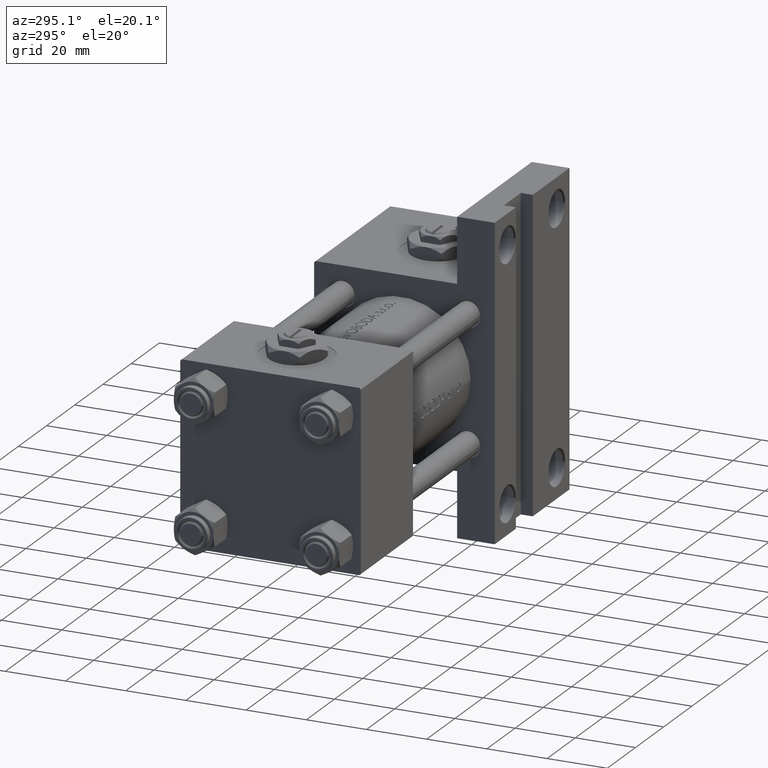
[diagram: clean part render]
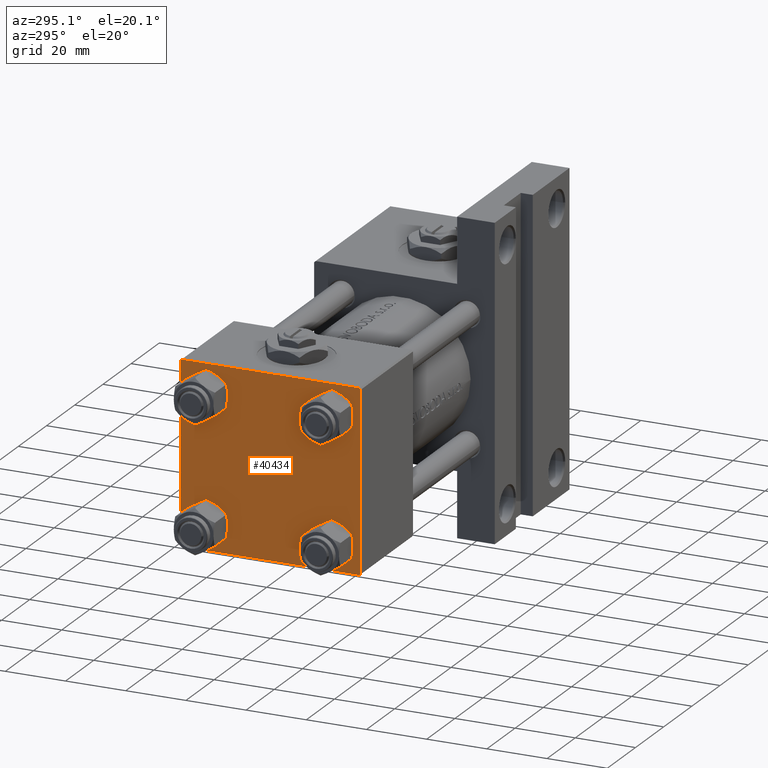
[diagram: same view with one face highlighted and labeled with its STEP entity id]
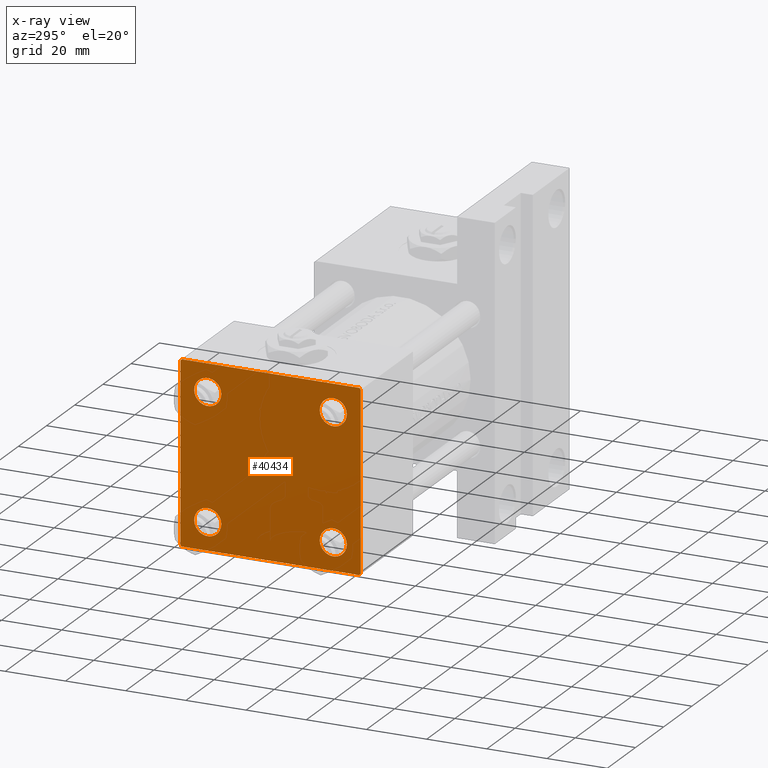
[diagram: x-ray of the same camera — body ghosted, the highlighted face saturated]
A machine part, auxiliary view. The second image highlights one B-rep face of the part: STEP entity #40434.
The next image is the same camera in x-ray: the body ghosted, the highlighted face saturated — about 0% of this face is hidden behind the body in this view.
In plain terms, the highlighted planar face has unit normal (-1, 0, -0).
Its self-contained STEP definition (entity closure, byte-faithful):
#388 = VECTOR ( 'NONE', #12780, 1000.000000000000114 ) ;
#1326 = AXIS2_PLACEMENT_3D ( 'NONE', #24713, #28306, #12406 ) ;
#1774 = VECTOR ( 'NONE', #25454, 1000.000000000000000 ) ;
#1947 = DIRECTION ( 'NONE',  ( 1.000000000000000000, -0.000000000000000000, 0.000000000000000000 ) ) ;
#2334 = CARTESIAN_POINT ( 'NONE',  ( 0.000000000000000000, -30.00000000000000000, 29.49999999999999289 ) ) ;
#2490 = CARTESIAN_POINT ( 'NONE',  ( 0.000000000000000000, 20.84999999999999787, 25.35000000000001918 ) ) ;
#2614 = CARTESIAN_POINT ( 'NONE',  ( 0.000000000000000000, -29.75000000000001066, -29.75000000000001066 ) ) ;
#2667 = DIRECTION ( 'NONE',  ( 0.000000000000000000, 0.7071067811865474617, -0.7071067811865474617 ) ) ;
#3121 = CIRCLE ( 'NONE', #23604, 4.500000000000017764 ) ;
#3199 = CARTESIAN_POINT ( 'NONE',  ( 0.000000000000000000, -20.84999999999999076, 25.35000000000002274 ) ) ;
#3636 = VERTEX_POINT ( 'NONE', #4293 ) ;
#3874 = LINE ( 'NONE', #39539, #44424 ) ;
#4080 = CARTESIAN_POINT ( 'NONE',  ( 0.000000000000000000, 20.84999999999999787, -16.34999999999998366 ) ) ;
#4293 = CARTESIAN_POINT ( 'NONE',  ( 0.000000000000000000, 29.99999999999999289, 29.50000000000000000 ) ) ;
#4360 = DIRECTION ( 'NONE',  ( 1.000000000000000000, -0.000000000000000000, 0.000000000000000000 ) ) ;
#6085 = CARTESIAN_POINT ( 'NONE',  ( -0.000000000000000000, -29.74999999999999645, 29.74999999999999645 ) ) ;
#6512 = CIRCLE ( 'NONE', #27014, 4.500000000000017764 ) ;
#6570 = AXIS2_PLACEMENT_3D ( 'NONE', #10062, #14684, #14421 ) ;
#6605 = EDGE_LOOP ( 'NONE', ( #37206, #48639 ) ) ;
#6648 = CARTESIAN_POINT ( 'NONE',  ( 0.000000000000000000, 20.84999999999999787, -25.35000000000001918 ) ) ;
#6772 = CARTESIAN_POINT ( 'NONE',  ( 0.000000000000000000, 29.74999999999999645, 29.74999999999999645 ) ) ;
#6937 = DIRECTION ( 'NONE',  ( 0.000000000000000000, 0.000000000000000000, 1.000000000000000000 ) ) ;
#7166 = CIRCLE ( 'NONE', #24393, 4.500000000000017764 ) ;
#8001 = LINE ( 'NONE', #15471, #11568 ) ;
#8250 = DIRECTION ( 'NONE',  ( 0.000000000000000000, 0.000000000000000000, -1.000000000000000000 ) ) ;
#8704 = VERTEX_POINT ( 'NONE', #27191 ) ;
#8965 = ORIENTED_EDGE ( 'NONE', *, *, #18582, .T. ) ;
#9081 = VERTEX_POINT ( 'NONE', #39620 ) ;
#9408 = DIRECTION ( 'NONE',  ( 1.000000000000000000, -0.000000000000000000, 0.000000000000000000 ) ) ;
#9994 = ORIENTED_EDGE ( 'NONE', *, *, #48545, .F. ) ;
#10062 = CARTESIAN_POINT ( 'NONE',  ( 0.000000000000000000, 20.84999999999999787, 20.85000000000000142 ) ) ;
#10151 = CARTESIAN_POINT ( 'NONE',  ( 0.000000000000000000, -20.84999999999999076, 20.85000000000000497 ) ) ;
#10364 = LINE ( 'NONE', #6772, #28262 ) ;
#11568 = VECTOR ( 'NONE', #8250, 1000.000000000000000 ) ;
#11717 = AXIS2_PLACEMENT_3D ( 'NONE', #36157, #4360, #43621 ) ;
#11765 = ORIENTED_EDGE ( 'NONE', *, *, #30419, .T. ) ;
#12125 = VERTEX_POINT ( 'NONE', #31732 ) ;
#12406 = DIRECTION ( 'NONE',  ( 0.000000000000000000, 0.000000000000000000, 1.000000000000000000 ) ) ;
#12533 = ORIENTED_EDGE ( 'NONE', *, *, #32873, .T. ) ;
#12705 = VERTEX_POINT ( 'NONE', #4080 ) ;
#12720 = DIRECTION ( 'NONE',  ( 0.000000000000000000, -1.000000000000000000, -1.156482317317871725E-16 ) ) ;
#12780 = DIRECTION ( 'NONE',  ( -0.000000000000000000, 0.7071067811865474617, 0.7071067811865474617 ) ) ;
#12813 = CARTESIAN_POINT ( 'NONE',  ( 0.000000000000000000, -20.84999999999999076, -16.34999999999998721 ) ) ;
#13267 = DIRECTION ( 'NONE',  ( 0.000000000000000000, 0.000000000000000000, 1.000000000000000000 ) ) ;
#13304 = ORIENTED_EDGE ( 'NONE', *, *, #32420, .T. ) ;
#13366 = EDGE_CURVE ( 'NONE', #26057, #46371, #28707, .T. ) ;
#13555 = CIRCLE ( 'NONE', #48796, 4.500000000000017764 ) ;
#13836 = VERTEX_POINT ( 'NONE', #21445 ) ;
#14421 = DIRECTION ( 'NONE',  ( 0.000000000000000000, 0.000000000000000000, 1.000000000000000000 ) ) ;
#14684 = DIRECTION ( 'NONE',  ( 1.000000000000000000, -0.000000000000000000, 0.000000000000000000 ) ) ;
#15253 = CARTESIAN_POINT ( 'NONE',  ( 0.000000000000000000, 29.99999999999999289, -29.50000000000000000 ) ) ;
#15471 = CARTESIAN_POINT ( 'NONE',  ( 0.000000000000000000, -30.00000000000000000, 29.99999999999999289 ) ) ;
#15952 = VERTEX_POINT ( 'NONE', #24389 ) ;
#16592 = FACE_BOUND ( 'NONE', #32329, .T. ) ;
#16730 = CARTESIAN_POINT ( 'NONE',  ( 0.000000000000000000, 29.99999999999999289, 30.00000000000000000 ) ) ;
#18413 = EDGE_CURVE ( 'NONE', #41087, #44306, #7166, .T. ) ;
#18582 = EDGE_CURVE ( 'NONE', #26684, #9081, #41592, .T. ) ;
#19627 = VECTOR ( 'NONE', #38282, 1000.000000000000114 ) ;
#20672 = CARTESIAN_POINT ( 'NONE',  ( 0.000000000000000000, 20.84999999999999787, 16.34999999999998366 ) ) ;
#21445 = CARTESIAN_POINT ( 'NONE',  ( 0.000000000000000000, 29.49999999999999289, 30.00000000000000000 ) ) ;
#21875 = EDGE_CURVE ( 'NONE', #3636, #23247, #43448, .T. ) ;
#23247 = VERTEX_POINT ( 'NONE', #15253 ) ;
#23555 = DIRECTION ( 'NONE',  ( 0.000000000000000000, 0.000000000000000000, 1.000000000000000000 ) ) ;
#23590 = LINE ( 'NONE', #2614, #19627 ) ;
#23598 = CARTESIAN_POINT ( 'NONE',  ( 0.000000000000000000, -20.84999999999999076, -20.85000000000000497 ) ) ;
#23604 = AXIS2_PLACEMENT_3D ( 'NONE', #26447, #42094, #6937 ) ;
#24040 = FACE_BOUND ( 'NONE', #6605, .T. ) ;
#24111 = DIRECTION ( 'NONE',  ( 0.000000000000000000, 0.000000000000000000, 1.000000000000000000 ) ) ;
#24282 = FACE_BOUND ( 'NONE', #25441, .T. ) ;
#24389 = CARTESIAN_POINT ( 'NONE',  ( 0.000000000000000000, -29.49999999999998579, 29.99999999999999289 ) ) ;
#24393 = AXIS2_PLACEMENT_3D ( 'NONE', #48413, #9408, #13267 ) ;
#24713 = CARTESIAN_POINT ( 'NONE',  ( 0.000000000000000000, -20.84999999999999076, 20.85000000000000497 ) ) ;
#25441 = EDGE_LOOP ( 'NONE', ( #8965, #26062 ) ) ;
#25450 = ORIENTED_EDGE ( 'NONE', *, *, #47463, .T. ) ;
#25454 = DIRECTION ( 'NONE',  ( 0.000000000000000000, 0.000000000000000000, -1.000000000000000000 ) ) ;
#25809 = DIRECTION ( 'NONE',  ( 0.000000000000000000, 0.000000000000000000, 1.000000000000000000 ) ) ;
#26057 = VERTEX_POINT ( 'NONE', #20672 ) ;
#26062 = ORIENTED_EDGE ( 'NONE', *, *, #36130, .T. ) ;
#26224 = EDGE_CURVE ( 'NONE', #23247, #35821, #3874, .T. ) ;
#26272 = CARTESIAN_POINT ( 'NONE',  ( 0.000000000000000000, 29.49999999999997868, -30.00000000000000000 ) ) ;
#26447 = CARTESIAN_POINT ( 'NONE',  ( 0.000000000000000000, 20.84999999999999787, -20.85000000000000142 ) ) ;
#26575 = EDGE_LOOP ( 'NONE', ( #33960, #44058, #11765, #39147, #9994, #12533, #46667, #13304 ) ) ;
#26684 = VERTEX_POINT ( 'NONE', #3199 ) ;
#27014 = AXIS2_PLACEMENT_3D ( 'NONE', #23598, #47207, #24111 ) ;
#27191 = CARTESIAN_POINT ( 'NONE',  ( 0.000000000000000000, -30.00000000000000000, -29.50000000000001776 ) ) ;
#28108 = ORIENTED_EDGE ( 'NONE', *, *, #38455, .T. ) ;
#28222 = EDGE_CURVE ( 'NONE', #46371, #26057, #45290, .T. ) ;
#28262 = VECTOR ( 'NONE', #2667, 1000.000000000000114 ) ;
#28306 = DIRECTION ( 'NONE',  ( 1.000000000000000000, -0.000000000000000000, 0.000000000000000000 ) ) ;
#28707 = CIRCLE ( 'NONE', #6570, 4.500000000000017764 ) ;
#29455 = VECTOR ( 'NONE', #32363, 1000.000000000000000 ) ;
#29963 = CIRCLE ( 'NONE', #1326, 4.500000000000017764 ) ;
#30138 = AXIS2_PLACEMENT_3D ( 'NONE', #10151, #1947, #25809 ) ;
#30419 = EDGE_CURVE ( 'NONE', #35821, #12125, #43782, .T. ) ;
#31239 = DIRECTION ( 'NONE',  ( -0.000000000000000000, 0.000000000000000000, 1.000000000000000000 ) ) ;
#31349 = DIRECTION ( 'NONE',  ( -0.000000000000000000, -0.7071067811865574537, -0.7071067811865376918 ) ) ;
#31732 = CARTESIAN_POINT ( 'NONE',  ( 0.000000000000000000, -29.50000000000000000, -30.00000000000000711 ) ) ;
#32329 = EDGE_LOOP ( 'NONE', ( #25450, #44152 ) ) ;
#32363 = DIRECTION ( 'NONE',  ( 0.000000000000000000, -1.000000000000000000, -1.156482317317871725E-16 ) ) ;
#32420 = EDGE_CURVE ( 'NONE', #13836, #3636, #10364, .T. ) ;
#32553 = ORIENTED_EDGE ( 'NONE', *, *, #44081, .T. ) ;
#32873 = EDGE_CURVE ( 'NONE', #35256, #15952, #41235, .T. ) ;
#33919 = CARTESIAN_POINT ( 'NONE',  ( 0.000000000000000000, -20.84999999999999076, -25.35000000000002274 ) ) ;
#33960 = ORIENTED_EDGE ( 'NONE', *, *, #21875, .T. ) ;
#35256 = VERTEX_POINT ( 'NONE', #2334 ) ;
#35751 = CARTESIAN_POINT ( 'NONE',  ( 0.000000000000000000, 29.99999999999999289, 30.00000000000000000 ) ) ;
#35821 = VERTEX_POINT ( 'NONE', #26272 ) ;
#36130 = EDGE_CURVE ( 'NONE', #9081, #26684, #29963, .T. ) ;
#36157 = CARTESIAN_POINT ( 'NONE',  ( 0.000000000000000000, 20.84999999999999787, 20.85000000000000142 ) ) ;
#36218 = LINE ( 'NONE', #16730, #29455 ) ;
#37206 = ORIENTED_EDGE ( 'NONE', *, *, #28222, .T. ) ;
#38282 = DIRECTION ( 'NONE',  ( 0.000000000000000000, -0.7071067811865474617, 0.7071067811865474617 ) ) ;
#38455 = EDGE_CURVE ( 'NONE', #42735, #12705, #13555, .T. ) ;
#38695 = DIRECTION ( 'NONE',  ( 1.000000000000000000, -0.000000000000000000, 0.000000000000000000 ) ) ;
#39147 = ORIENTED_EDGE ( 'NONE', *, *, #46217, .T. ) ;
#39429 = FACE_BOUND ( 'NONE', #44363, .T. ) ;
#39539 = CARTESIAN_POINT ( 'NONE',  ( 0.000000000000000000, 29.74999999999957723, -29.75000000000040501 ) ) ;
#39620 = CARTESIAN_POINT ( 'NONE',  ( 0.000000000000000000, -20.84999999999999076, 16.34999999999998721 ) ) ;
#40434 = ADVANCED_FACE ( 'NONE', ( #24282, #16592, #39429, #24040, #43786 ), #42781, .T. ) ;
#41087 = VERTEX_POINT ( 'NONE', #33919 ) ;
#41235 = LINE ( 'NONE', #6085, #388 ) ;
#41592 = CIRCLE ( 'NONE', #30138, 4.500000000000017764 ) ;
#42094 = DIRECTION ( 'NONE',  ( 1.000000000000000000, -0.000000000000000000, 0.000000000000000000 ) ) ;
#42318 = AXIS2_PLACEMENT_3D ( 'NONE', #47395, #43290, #31239 ) ;
#42735 = VERTEX_POINT ( 'NONE', #6648 ) ;
#42781 = PLANE ( 'NONE',  #42318 ) ;
#43290 = DIRECTION ( 'NONE',  ( -1.000000000000000000, 0.000000000000000000, -0.000000000000000000 ) ) ;
#43448 = LINE ( 'NONE', #35751, #1774 ) ;
#43621 = DIRECTION ( 'NONE',  ( 0.000000000000000000, 0.000000000000000000, 1.000000000000000000 ) ) ;
#43782 = LINE ( 'NONE', #44285, #44580 ) ;
#43786 = FACE_OUTER_BOUND ( 'NONE', #26575, .T. ) ;
#44058 = ORIENTED_EDGE ( 'NONE', *, *, #26224, .T. ) ;
#44081 = EDGE_CURVE ( 'NONE', #12705, #42735, #3121, .T. ) ;
#44152 = ORIENTED_EDGE ( 'NONE', *, *, #18413, .T. ) ;
#44285 = CARTESIAN_POINT ( 'NONE',  ( 0.000000000000000000, 29.99999999999999289, -30.00000000000000000 ) ) ;
#44306 = VERTEX_POINT ( 'NONE', #12813 ) ;
#44363 = EDGE_LOOP ( 'NONE', ( #32553, #28108 ) ) ;
#44424 = VECTOR ( 'NONE', #31349, 999.9999999999998863 ) ;
#44580 = VECTOR ( 'NONE', #12720, 1000.000000000000000 ) ;
#45290 = CIRCLE ( 'NONE', #11717, 4.500000000000017764 ) ;
#46217 = EDGE_CURVE ( 'NONE', #12125, #8704, #23590, .T. ) ;
#46371 = VERTEX_POINT ( 'NONE', #2490 ) ;
#46667 = ORIENTED_EDGE ( 'NONE', *, *, #48057, .F. ) ;
#47207 = DIRECTION ( 'NONE',  ( 1.000000000000000000, -0.000000000000000000, 0.000000000000000000 ) ) ;
#47395 = CARTESIAN_POINT ( 'NONE',  ( 0.000000000000000000, 0.000000000000000000, 0.000000000000000000 ) ) ;
#47463 = EDGE_CURVE ( 'NONE', #44306, #41087, #6512, .T. ) ;
#48057 = EDGE_CURVE ( 'NONE', #13836, #15952, #36218, .T. ) ;
#48413 = CARTESIAN_POINT ( 'NONE',  ( 0.000000000000000000, -20.84999999999999076, -20.85000000000000497 ) ) ;
#48545 = EDGE_CURVE ( 'NONE', #35256, #8704, #8001, .T. ) ;
#48639 = ORIENTED_EDGE ( 'NONE', *, *, #13366, .T. ) ;
#48796 = AXIS2_PLACEMENT_3D ( 'NONE', #50754, #38695, #23555 ) ;
#50754 = CARTESIAN_POINT ( 'NONE',  ( 0.000000000000000000, 20.84999999999999787, -20.85000000000000142 ) ) ;